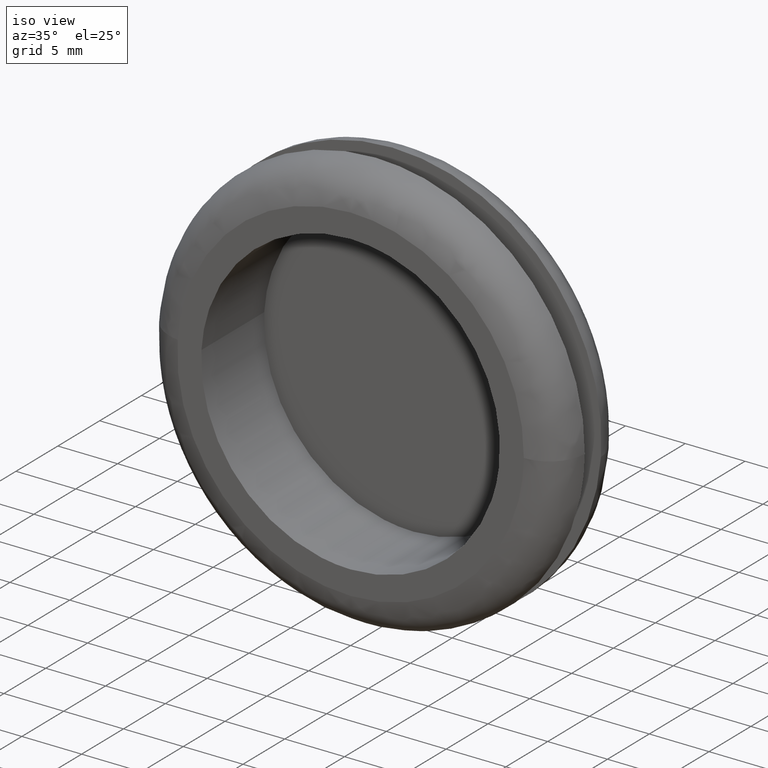
[diagram: clean part render]
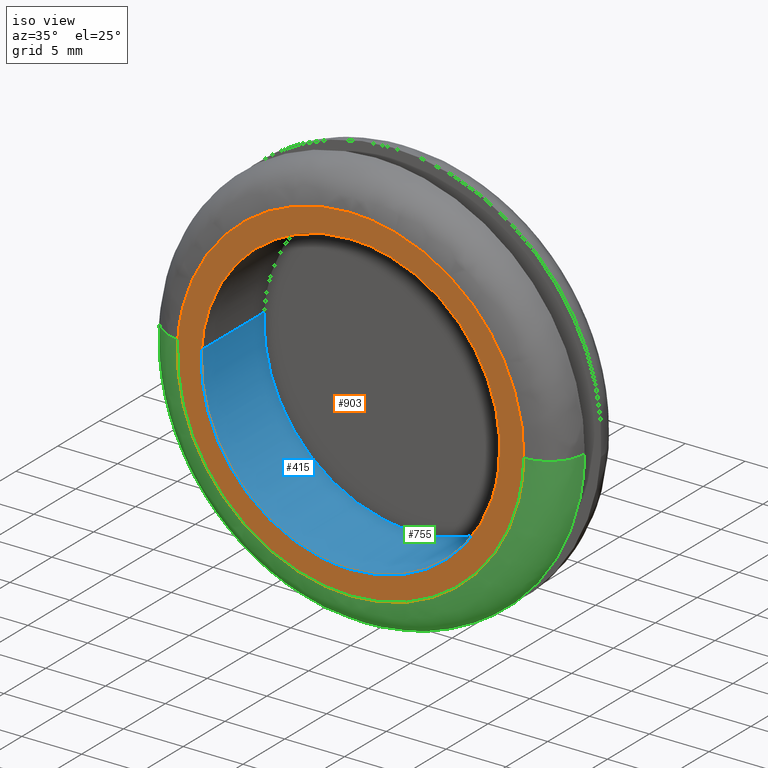
[diagram: same view with three faces highlighted in distinct colors, each labeled with its STEP entity id]
A machine part, iso view with three faces highlighted in distinct colors.
Their STEP definitions:

[orange] entity #903 — the highlighted face is a freeform B-spline surface patch.
#271=CARTESIAN_POINT('',(12.412619730572290,-2.383220E-015,-1.475422456172133));
#272=VERTEX_POINT('',#271);
#278=CARTESIAN_POINT('',(0.0,-2.296137E-015,12.500000000000000));
#279=VERTEX_POINT('',#278);
#280=CARTESIAN_POINT('',(12.412619730572295,-2.383220E-015,-1.475422456172133));
#281=CARTESIAN_POINT('',(12.500000000000002,-2.296137E-015,-0.740298728179114));
#282=CARTESIAN_POINT('',(12.500000000000000,-2.296137E-015,-3.061516E-016));
#283=CARTESIAN_POINT('',(12.499999999999998,-2.296137E-015,12.499999999999998));
#284=CARTESIAN_POINT('',(0.0,-2.296137E-015,12.500000000000000));
#292=(BOUNDED_CURVE()B_SPLINE_CURVE(2,(#280,#281,#282,#283,#284),.UNSPECIFIED.,.F.,.U.)B_SPLINE_CURVE_WITH_KNOTS((3,2,3),(0.229562548087910,0.250000000000000,0.500000000000000),.UNSPECIFIED.)CURVE()GEOMETRIC_REPRESENTATION_ITEM()RATIONAL_B_SPLINE_CURVE((0.956026900352632,0.976056035700492,1.0,0.707106781186547,1.0))REPRESENTATION_ITEM(''));
#293=EDGE_CURVE('',#272,#279,#292,.T.);
#295=CARTESIAN_POINT('',(-12.476685747280390,-2.410947E-015,0.763094203524391));
#296=VERTEX_POINT('',#295);
#297=CARTESIAN_POINT('',(0.0,-2.296137E-015,12.500000000000000));
#298=CARTESIAN_POINT('',(-11.758837677533522,-2.296137E-015,12.499999999999998));
#299=CARTESIAN_POINT('',(-12.476685747280390,-2.410947E-015,0.763094203524391));
#307=(BOUNDED_CURVE()B_SPLINE_CURVE(2,(#297,#298,#299),.UNSPECIFIED.,.F.,.U.)B_SPLINE_CURVE_WITH_KNOTS((3,3),(0.500000000000000,0.739333135673544),.UNSPECIFIED.)CURVE()GEOMETRIC_REPRESENTATION_ITEM()RATIONAL_B_SPLINE_CURVE((1.0,0.719603790095436,0.976072413370364))REPRESENTATION_ITEM(''));
#308=EDGE_CURVE('',#279,#296,#307,.T.);
#382=CARTESIAN_POINT('',(0.0,-2.296137E-015,-12.500000000000000));
#383=VERTEX_POINT('',#382);
#384=CARTESIAN_POINT('',(-12.476685747280390,-2.410947E-015,0.763094203524391));
#385=CARTESIAN_POINT('',(-12.499999999999998,-2.296137E-015,0.381903253320788));
#386=CARTESIAN_POINT('',(-12.500000000000000,-2.296137E-015,-3.061516E-016));
#387=CARTESIAN_POINT('',(-12.499999999999998,-2.296137E-015,-12.499999999999998));
#388=CARTESIAN_POINT('',(0.0,-2.296137E-015,-12.500000000000000));
#396=(BOUNDED_CURVE()B_SPLINE_CURVE(2,(#384,#385,#386,#387,#388),.UNSPECIFIED.,.F.,.U.)B_SPLINE_CURVE_WITH_KNOTS((3,2,3),(0.739333135673544,0.750000000000000,1.0),.UNSPECIFIED.)CURVE()GEOMETRIC_REPRESENTATION_ITEM()RATIONAL_B_SPLINE_CURVE((0.976072413370364,0.987502991091111,1.0,0.707106781186547,1.0))REPRESENTATION_ITEM(''));
#397=EDGE_CURVE('',#296,#383,#396,.T.);
#399=CARTESIAN_POINT('',(0.0,-2.296137E-015,-12.500000000000000));
#400=CARTESIAN_POINT('',(11.102186507688929,-2.296137E-015,-12.499999999999998));
#401=CARTESIAN_POINT('',(12.412619730572295,-2.383220E-015,-1.475422456172133));
#409=(BOUNDED_CURVE()B_SPLINE_CURVE(2,(#399,#400,#401),.UNSPECIFIED.,.F.,.U.)B_SPLINE_CURVE_WITH_KNOTS((3,3),(0.0,0.229562548087910),.UNSPECIFIED.)CURVE()GEOMETRIC_REPRESENTATION_ITEM()RATIONAL_B_SPLINE_CURVE((1.0,0.731050745486056,0.956026900352632))REPRESENTATION_ITEM(''));
#410=EDGE_CURVE('',#383,#272,#409,.T.);
#659=CARTESIAN_POINT('',(-14.464702138106420,-6.384905E-014,1.011132138611312));
#660=VERTEX_POINT('',#659);
#661=CARTESIAN_POINT('',(0.0,-6.394885E-014,-14.499999866719939));
#662=VERTEX_POINT('',#661);
#663=CARTESIAN_POINT('',(-14.464702138106420,-6.384905E-014,1.011132138611312));
#664=CARTESIAN_POINT('',(-14.499999866719945,-6.394885E-014,0.506182175565772));
#665=CARTESIAN_POINT('',(-14.499999866719939,-6.394885E-014,-3.061516E-016));
#666=CARTESIAN_POINT('',(-14.499999866719946,-6.394885E-014,-14.499999866719946));
#667=CARTESIAN_POINT('',(0.0,-6.394885E-014,-14.499999866719939));
#675=(BOUNDED_CURVE()B_SPLINE_CURVE(2,(#663,#664,#665,#666,#667),.UNSPECIFIED.,.F.,.U.)B_SPLINE_CURVE_WITH_KNOTS((3,2,3),(0.737833686534302,0.750000000000000,1.0),.UNSPECIFIED.)CURVE()GEOMETRIC_REPRESENTATION_ITEM()RATIONAL_B_SPLINE_CURVE((0.972879876385306,0.985746277151753,1.0,0.707106781186548,1.0))REPRESENTATION_ITEM(''));
#676=EDGE_CURVE('',#660,#662,#675,.T.);
#725=CARTESIAN_POINT('',(14.498855008070800,-6.388134E-014,-0.182207576678487));
#726=VERTEX_POINT('',#725);
#740=CARTESIAN_POINT('',(0.0,-6.394885E-014,-14.499999866719939));
#741=CARTESIAN_POINT('',(14.318922851961739,-6.394885E-014,-14.499999866719934));
#742=CARTESIAN_POINT('',(14.498855008070807,-6.388134E-014,-0.182207576678487));
#750=(BOUNDED_CURVE()B_SPLINE_CURVE(2,(#740,#741,#742),.UNSPECIFIED.,.F.,.U.)B_SPLINE_CURVE_WITH_KNOTS((3,3),(0.0,0.247784295920762),.UNSPECIFIED.)CURVE()GEOMETRIC_REPRESENTATION_ITEM()RATIONAL_B_SPLINE_CURVE((1.0,0.709702639985372,0.994854295641789))REPRESENTATION_ITEM(''));
#751=EDGE_CURVE('',#662,#726,#750,.T.);
#779=CARTESIAN_POINT('',(0.0,-6.394885E-014,14.499999866719939));
#780=VERTEX_POINT('',#779);
#781=CARTESIAN_POINT('',(0.0,-6.394885E-014,14.499999866719939));
#782=CARTESIAN_POINT('',(-13.521784161011732,-6.394885E-014,14.499999866719934));
#783=CARTESIAN_POINT('',(-14.464702138106416,-6.384905E-014,1.011132138611312));
#791=(BOUNDED_CURVE()B_SPLINE_CURVE(2,(#781,#782,#783),.UNSPECIFIED.,.F.,.U.)B_SPLINE_CURVE_WITH_KNOTS((3,3),(0.500000000000000,0.737833686534301),.UNSPECIFIED.)CURVE()GEOMETRIC_REPRESENTATION_ITEM()RATIONAL_B_SPLINE_CURVE((1.0,0.721360504034796,0.972879876385304))REPRESENTATION_ITEM(''));
#792=EDGE_CURVE('',#780,#660,#791,.T.);
#794=CARTESIAN_POINT('',(14.498855008070800,-6.388134E-014,-0.182207576678487));
#795=CARTESIAN_POINT('',(14.499999866719941,-6.394885E-014,-0.091107385084804));
#796=CARTESIAN_POINT('',(14.499999866719939,-6.394885E-014,-3.061516E-016));
#797=CARTESIAN_POINT('',(14.499999866719946,-6.394885E-014,14.499999866719946));
#798=CARTESIAN_POINT('',(0.0,-6.394885E-014,14.499999866719939));
#806=(BOUNDED_CURVE()B_SPLINE_CURVE(2,(#794,#795,#796,#797,#798),.UNSPECIFIED.,.F.,.U.)B_SPLINE_CURVE_WITH_KNOTS((3,2,3),(0.247784295920762,0.250000000000000,0.500000000000000),.UNSPECIFIED.)CURVE()GEOMETRIC_REPRESENTATION_ITEM()RATIONAL_B_SPLINE_CURVE((0.994854295641788,0.997404141201175,1.0,0.707106781186548,1.0))REPRESENTATION_ITEM(''));
#807=EDGE_CURVE('',#726,#780,#806,.T.);
#886=CARTESIAN_POINT('',(-15.946756566500710,-3.312249E-014,-15.948550069428880));
#887=CARTESIAN_POINT('',(-15.946756566500710,-3.312249E-014,15.948550587989290));
#888=CARTESIAN_POINT('',(15.947263767816120,-3.312249E-014,-15.948550069428880));
#889=CARTESIAN_POINT('',(15.947263767816120,-3.312249E-014,15.948550587989290));
#890=B_SPLINE_SURFACE_WITH_KNOTS('',1,1,((#886,#888),(#887,#889)),.UNSPECIFIED.,.F.,.F.,.U.,(2,2),(2,2),(0.0,31.897100657418179),(0.0,31.894020334316831),.UNSPECIFIED.);
#891=ORIENTED_EDGE('',*,*,#751,.T.);
#892=ORIENTED_EDGE('',*,*,#807,.T.);
#893=ORIENTED_EDGE('',*,*,#792,.T.);
#894=ORIENTED_EDGE('',*,*,#676,.T.);
#895=EDGE_LOOP('',(#891,#892,#893,#894));
#896=FACE_OUTER_BOUND('',#895,.T.);
#897=ORIENTED_EDGE('',*,*,#308,.F.);
#898=ORIENTED_EDGE('',*,*,#293,.F.);
#899=ORIENTED_EDGE('',*,*,#410,.F.);
#900=ORIENTED_EDGE('',*,*,#397,.F.);
#901=EDGE_LOOP('',(#897,#898,#899,#900));
#902=FACE_BOUND('',#901,.T.);
#903=ADVANCED_FACE('',(#896,#902),#890,.F.);

[blue] entity #415 — the highlighted face is a freeform B-spline surface patch.
#252=CARTESIAN_POINT('',(12.412619738504860,7.499999999999872,-1.475422389435752));
#253=VERTEX_POINT('',#252);
#271=CARTESIAN_POINT('',(12.412619730572290,-2.383220E-015,-1.475422456172133));
#272=VERTEX_POINT('',#271);
#273=CARTESIAN_POINT('',(12.412619738504860,7.499999999999872,-1.475422389435752));
#274=CARTESIAN_POINT('',(12.412619730572290,-2.383220E-015,-1.475422456172133));
#275=QUASI_UNIFORM_CURVE('',1,(#273,#274),.UNSPECIFIED.,.F.,.U.);
#276=EDGE_CURVE('',#253,#272,#275,.T.);
#295=CARTESIAN_POINT('',(-12.476685747280390,-2.410947E-015,0.763094203524391));
#296=VERTEX_POINT('',#295);
#310=CARTESIAN_POINT('',(-12.476685756633151,7.499999999999887,0.763094050603009));
#311=VERTEX_POINT('',#310);
#312=CARTESIAN_POINT('',(-12.476685756633151,7.499999999999887,0.763094050603009));
#313=CARTESIAN_POINT('',(-12.476685747280390,-2.410947E-015,0.763094203524391));
#314=QUASI_UNIFORM_CURVE('',1,(#312,#313),.UNSPECIFIED.,.F.,.U.);
#315=EDGE_CURVE('',#311,#296,#314,.T.);
#333=CARTESIAN_POINT('',(-12.476684980273340,7.687499999999898,0.763106744185712));
#334=CARTESIAN_POINT('',(-13.239791724459048,7.687499999999900,-11.713578236087622));
#335=CARTESIAN_POINT('',(-0.763106744185712,7.687499999999898,-12.476684980273340));
#336=CARTESIAN_POINT('',(11.019293635493762,7.687499999999899,-13.197327459156595));
#337=CARTESIAN_POINT('',(12.412619079545834,7.687499999999898,-1.475427933209482));
#338=CARTESIAN_POINT('',(-12.476684980273340,-0.192187500000000,0.763106744185712));
#339=CARTESIAN_POINT('',(-13.239791724459048,-0.192187500000000,-11.713578236087622));
#340=CARTESIAN_POINT('',(-0.763106744185712,-0.192187500000000,-12.476684980273340));
#341=CARTESIAN_POINT('',(11.019293635493762,-0.192187500000000,-13.197327459156595));
#342=CARTESIAN_POINT('',(12.412619079545834,-0.192187500000000,-1.475427933209482));
#350=(BOUNDED_SURFACE()B_SPLINE_SURFACE(2,1,((#333,#338),(#334,#339),(#335,#340),(#336,#341),(#337,#342)),.UNSPECIFIED.,.F.,.F.,.U.)B_SPLINE_SURFACE_WITH_KNOTS((3,2,3),(2,2),(0.0,20.710678118654752,40.592929112563311),(0.0,7.879687499999899),.UNSPECIFIED.)GEOMETRIC_REPRESENTATION_ITEM()RATIONAL_B_SPLINE_SURFACE(((1.0,1.0),(0.707106781186548,0.707106781186548),(1.0,1.0),(0.718822509939086,0.718822509939086),(0.977505800795127,0.977505800795127)))REPRESENTATION_ITEM('')SURFACE());
#351=CARTESIAN_POINT('',(0.0,7.499999999999900,-12.500000000000000));
#352=VERTEX_POINT('',#351);
#353=CARTESIAN_POINT('',(0.0,7.499999999999900,-12.500000000000000));
#354=CARTESIAN_POINT('',(11.102186567799974,7.499999999999901,-12.499999999999998));
#355=CARTESIAN_POINT('',(12.412619738504862,7.499999999999872,-1.475422389435752));
#363=(BOUNDED_CURVE()B_SPLINE_CURVE(2,(#353,#354,#355),.UNSPECIFIED.,.F.,.U.)B_SPLINE_CURVE_WITH_KNOTS((3,3),(0.0,0.229562548996556),.UNSPECIFIED.)CURVE()GEOMETRIC_REPRESENTATION_ITEM()RATIONAL_B_SPLINE_CURVE((1.0,0.731050744421512,0.956026902133615))REPRESENTATION_ITEM(''));
#364=EDGE_CURVE('',#352,#253,#363,.T.);
#365=ORIENTED_EDGE('',*,*,#364,.F.);
#366=CARTESIAN_POINT('',(-12.476685756633152,7.499999999999887,0.763094050603009));
#367=CARTESIAN_POINT('',(-12.500000000000000,7.499999999999900,0.381903176645719));
#368=CARTESIAN_POINT('',(-12.500000000000000,7.499999999999900,-3.061516E-016));
#369=CARTESIAN_POINT('',(-12.499999999999998,7.499999999999901,-12.499999999999998));
#370=CARTESIAN_POINT('',(0.0,7.499999999999900,-12.500000000000000));
#378=(BOUNDED_CURVE()B_SPLINE_CURVE(2,(#366,#367,#368,#369,#370),.UNSPECIFIED.,.F.,.U.)B_SPLINE_CURVE_WITH_KNOTS((3,2,3),(0.739333137788376,0.750000000000000,1.0),.UNSPECIFIED.)CURVE()GEOMETRIC_REPRESENTATION_ITEM()RATIONAL_B_SPLINE_CURVE((0.976072417902860,0.987502993568792,1.0,0.707106781186547,1.0))REPRESENTATION_ITEM(''));
#379=EDGE_CURVE('',#311,#352,#378,.T.);
#380=ORIENTED_EDGE('',*,*,#379,.F.);
#381=ORIENTED_EDGE('',*,*,#315,.T.);
#382=CARTESIAN_POINT('',(0.0,-2.296137E-015,-12.500000000000000));
#383=VERTEX_POINT('',#382);
#384=CARTESIAN_POINT('',(-12.476685747280390,-2.410947E-015,0.763094203524391));
#385=CARTESIAN_POINT('',(-12.499999999999998,-2.296137E-015,0.381903253320788));
#386=CARTESIAN_POINT('',(-12.500000000000000,-2.296137E-015,-3.061516E-016));
#387=CARTESIAN_POINT('',(-12.499999999999998,-2.296137E-015,-12.499999999999998));
#388=CARTESIAN_POINT('',(0.0,-2.296137E-015,-12.500000000000000));
#396=(BOUNDED_CURVE()B_SPLINE_CURVE(2,(#384,#385,#386,#387,#388),.UNSPECIFIED.,.F.,.U.)B_SPLINE_CURVE_WITH_KNOTS((3,2,3),(0.739333135673544,0.750000000000000,1.0),.UNSPECIFIED.)CURVE()GEOMETRIC_REPRESENTATION_ITEM()RATIONAL_B_SPLINE_CURVE((0.976072413370364,0.987502991091111,1.0,0.707106781186547,1.0))REPRESENTATION_ITEM(''));
#397=EDGE_CURVE('',#296,#383,#396,.T.);
#398=ORIENTED_EDGE('',*,*,#397,.T.);
#399=CARTESIAN_POINT('',(0.0,-2.296137E-015,-12.500000000000000));
#400=CARTESIAN_POINT('',(11.102186507688929,-2.296137E-015,-12.499999999999998));
#401=CARTESIAN_POINT('',(12.412619730572295,-2.383220E-015,-1.475422456172133));
#409=(BOUNDED_CURVE()B_SPLINE_CURVE(2,(#399,#400,#401),.UNSPECIFIED.,.F.,.U.)B_SPLINE_CURVE_WITH_KNOTS((3,3),(0.0,0.229562548087910),.UNSPECIFIED.)CURVE()GEOMETRIC_REPRESENTATION_ITEM()RATIONAL_B_SPLINE_CURVE((1.0,0.731050745486056,0.956026900352632))REPRESENTATION_ITEM(''));
#410=EDGE_CURVE('',#383,#272,#409,.T.);
#411=ORIENTED_EDGE('',*,*,#410,.T.);
#412=ORIENTED_EDGE('',*,*,#276,.F.);
#413=EDGE_LOOP('',(#365,#380,#381,#398,#411,#412));
#414=FACE_OUTER_BOUND('',#413,.T.);
#415=ADVANCED_FACE('',(#414),#350,.F.);

[green] entity #755 — the highlighted face is a freeform B-spline surface patch.
#630=CARTESIAN_POINT('',(-17.450155134519811,3.208611455595631,1.219824543408222));
#631=CARTESIAN_POINT('',(-17.485065955191811,3.208611455595631,0.720409082478247));
#632=CARTESIAN_POINT('',(-17.491356944086842,3.208611455595630,0.219814444597841));
#633=CARTESIAN_POINT('',(-17.711171388684683,3.208611455595631,-17.271542499489001));
#634=CARTESIAN_POINT('',(-0.219814444597842,3.208611455595630,-17.491356944086842));
#635=CARTESIAN_POINT('',(17.271542499489001,3.208611455595631,-17.711171388684683));
#636=CARTESIAN_POINT('',(17.491356944086842,3.208611455595630,-0.219814444597843));
#637=CARTESIAN_POINT('',(-17.689444565399761,-0.232611996810258,1.236551679557753));
#638=CARTESIAN_POINT('',(-17.724834109059938,-0.232611996810258,0.730287864530216));
#639=CARTESIAN_POINT('',(-17.731211364646633,-0.232611996810258,0.222828702805950));
#640=CARTESIAN_POINT('',(-17.954040067452588,-0.232611996810258,-17.508382661840681));
#641=CARTESIAN_POINT('',(-0.222828702805951,-0.232611996810258,-17.731211364646633));
#642=CARTESIAN_POINT('',(17.508382661840681,-0.232611996810258,-17.954040067452588));
#643=CARTESIAN_POINT('',(17.731211364646633,-0.232611996810258,-0.222828702805952));
#644=CARTESIAN_POINT('',(-14.256598199972428,0.007261937678378,0.996584171073296));
#645=CARTESIAN_POINT('',(-14.285119983264057,0.007261937678378,0.588566849367772));
#646=CARTESIAN_POINT('',(-14.290259656823723,0.007261937678378,0.179586152158741));
#647=CARTESIAN_POINT('',(-14.469845808982466,0.007261937678378,-14.110673504664984));
#648=CARTESIAN_POINT('',(-0.179586152158742,0.007261937678378,-14.290259656823723));
#649=CARTESIAN_POINT('',(14.110673504664984,0.007261937678378,-14.469845808982466));
#650=CARTESIAN_POINT('',(14.290259656823723,0.007261937678378,-0.179586152158743));
#658=(BOUNDED_SURFACE()B_SPLINE_SURFACE(2,2,((#630,#637,#644),(#631,#638,#645),(#632,#639,#646),(#633,#640,#647),(#634,#641,#648),(#635,#642,#649),(#636,#643,#650)),.UNSPECIFIED.,.F.,.F.,.U.)B_SPLINE_SURFACE_WITH_KNOTS((3,2,2,3),(3,3),(0.0,1.159315592450299,30.142233043971750,59.125150495493209),(0.0,5.467122547965218),.UNSPECIFIED.)GEOMETRIC_REPRESENTATION_ITEM()RATIONAL_B_SPLINE_SURFACE(((0.895729735285258,0.587800190257192,0.895729803418566),(0.905606492914159,0.594281564922668,0.905606561798738),(0.916342098142244,0.601326536800916,0.916342167843423),(0.647951711483090,0.425202071879350,0.647951760769266),(0.916342098142244,0.601326536800916,0.916342167843423),(0.647951711483090,0.425202071879350,0.647951760769266),(0.916342098142244,0.601326536800916,0.916342167843423)))REPRESENTATION_ITEM('')SURFACE());
#659=CARTESIAN_POINT('',(-14.464702138106420,-6.384905E-014,1.011132138611312));
#660=VERTEX_POINT('',#659);
#661=CARTESIAN_POINT('',(0.0,-6.394885E-014,-14.499999866719939));
#662=VERTEX_POINT('',#661);
#663=CARTESIAN_POINT('',(-14.464702138106420,-6.384905E-014,1.011132138611312));
#664=CARTESIAN_POINT('',(-14.499999866719945,-6.394885E-014,0.506182175565772));
#665=CARTESIAN_POINT('',(-14.499999866719939,-6.394885E-014,-3.061516E-016));
#666=CARTESIAN_POINT('',(-14.499999866719946,-6.394885E-014,-14.499999866719946));
#667=CARTESIAN_POINT('',(0.0,-6.394885E-014,-14.499999866719939));
#675=(BOUNDED_CURVE()B_SPLINE_CURVE(2,(#663,#664,#665,#666,#667),.UNSPECIFIED.,.F.,.U.)B_SPLINE_CURVE_WITH_KNOTS((3,2,3),(0.737833686534302,0.750000000000000,1.0),.UNSPECIFIED.)CURVE()GEOMETRIC_REPRESENTATION_ITEM()RATIONAL_B_SPLINE_CURVE((0.972879876385306,0.985746277151753,1.0,0.707106781186548,1.0))REPRESENTATION_ITEM(''));
#676=EDGE_CURVE('',#660,#662,#675,.T.);
#677=ORIENTED_EDGE('',*,*,#676,.F.);
#678=CARTESIAN_POINT('',(-17.457399292207040,2.999999999907546,1.220331902577759));
#679=VERTEX_POINT('',#678);
#680=CARTESIAN_POINT('',(-17.457399292207040,2.999999999907547,1.220331902577759));
#681=CARTESIAN_POINT('',(-17.457399159067599,7.582020E-010,1.220331893263300));
#682=CARTESIAN_POINT('',(-14.464702138106416,-6.384905E-014,1.011132138611312));
#690=(BOUNDED_CURVE()B_SPLINE_CURVE(2,(#680,#681,#682),.UNSPECIFIED.,.F.,.U.)B_SPLINE_CURVE_WITH_KNOTS((3,3),(-1.734750745430869,-0.265249208604235),.UNSPECIFIED.)CURVE()GEOMETRIC_REPRESENTATION_ITEM()RATIONAL_B_SPLINE_CURVE((0.869031695861048,0.614498224585748,0.869031711784277))REPRESENTATION_ITEM(''));
#691=EDGE_CURVE('',#679,#660,#690,.T.);
#692=ORIENTED_EDGE('',*,*,#691,.F.);
#693=CARTESIAN_POINT('',(0.0,2.999999999999955,-17.500000000000000));
#694=VERTEX_POINT('',#693);
#695=CARTESIAN_POINT('',(-17.457399292207032,2.999999999907546,1.220331902577760));
#696=CARTESIAN_POINT('',(-17.500000000000004,2.999999999999955,0.610909527815002));
#697=CARTESIAN_POINT('',(-17.500000000000000,2.999999999999955,-3.061516E-016));
#698=CARTESIAN_POINT('',(-17.499999999999996,2.999999999999955,-17.499999999999996));
#699=CARTESIAN_POINT('',(0.0,2.999999999999955,-17.500000000000000));
#707=(BOUNDED_CURVE()B_SPLINE_CURVE(2,(#695,#696,#697,#698,#699),.UNSPECIFIED.,.F.,.U.)B_SPLINE_CURVE_WITH_KNOTS((3,2,3),(0.737833686534986,0.750000000000000,1.0),.UNSPECIFIED.)CURVE()GEOMETRIC_REPRESENTATION_ITEM()RATIONAL_B_SPLINE_CURVE((0.972879876386753,0.985746277152555,1.0,0.707106781186548,1.0))REPRESENTATION_ITEM(''));
#708=EDGE_CURVE('',#679,#694,#707,.T.);
#709=ORIENTED_EDGE('',*,*,#708,.T.);
#710=CARTESIAN_POINT('',(17.498618273566660,2.999999999907550,-0.219905697968200));
#711=VERTEX_POINT('',#710);
#712=CARTESIAN_POINT('',(0.0,2.999999999999955,-17.500000000000000));
#713=CARTESIAN_POINT('',(17.281458773359173,2.999999999999954,-17.500000000000004));
#714=CARTESIAN_POINT('',(17.498618273566652,2.999999999907549,-0.219905697968200));
#722=(BOUNDED_CURVE()B_SPLINE_CURVE(2,(#712,#713,#714),.UNSPECIFIED.,.F.,.U.)B_SPLINE_CURVE_WITH_KNOTS((3,3),(0.0,0.247784295921537),.UNSPECIFIED.)CURVE()GEOMETRIC_REPRESENTATION_ITEM()RATIONAL_B_SPLINE_CURVE((1.0,0.709702639984464,0.994854295643571))REPRESENTATION_ITEM(''));
#723=EDGE_CURVE('',#694,#711,#722,.T.);
#724=ORIENTED_EDGE('',*,*,#723,.T.);
#725=CARTESIAN_POINT('',(14.498855008070800,-6.388134E-014,-0.182207576678487));
#726=VERTEX_POINT('',#725);
#727=CARTESIAN_POINT('',(17.498618273566652,2.999999999907550,-0.219905697968200));
#728=CARTESIAN_POINT('',(17.498618140112473,7.710094E-010,-0.219905696281547));
#729=CARTESIAN_POINT('',(14.498855008070798,-6.388134E-014,-0.182207576678487));
#737=(BOUNDED_CURVE()B_SPLINE_CURVE(2,(#727,#728,#729),.UNSPECIFIED.,.F.,.U.)B_SPLINE_CURVE_WITH_KNOTS((3,3),(-1.734750745430872,-0.265249208608671),.UNSPECIFIED.)CURVE()GEOMETRIC_REPRESENTATION_ITEM()RATIONAL_B_SPLINE_CURVE((0.889029707193714,0.628638954455992,0.889029723481793))REPRESENTATION_ITEM(''));
#738=EDGE_CURVE('',#711,#726,#737,.T.);
#739=ORIENTED_EDGE('',*,*,#738,.T.);
#740=CARTESIAN_POINT('',(0.0,-6.394885E-014,-14.499999866719939));
#741=CARTESIAN_POINT('',(14.318922851961739,-6.394885E-014,-14.499999866719934));
#742=CARTESIAN_POINT('',(14.498855008070807,-6.388134E-014,-0.182207576678487));
#750=(BOUNDED_CURVE()B_SPLINE_CURVE(2,(#740,#741,#742),.UNSPECIFIED.,.F.,.U.)B_SPLINE_CURVE_WITH_KNOTS((3,3),(0.0,0.247784295920762),.UNSPECIFIED.)CURVE()GEOMETRIC_REPRESENTATION_ITEM()RATIONAL_B_SPLINE_CURVE((1.0,0.709702639985372,0.994854295641789))REPRESENTATION_ITEM(''));
#751=EDGE_CURVE('',#662,#726,#750,.T.);
#752=ORIENTED_EDGE('',*,*,#751,.F.);
#753=EDGE_LOOP('',(#677,#692,#709,#724,#739,#752));
#754=FACE_OUTER_BOUND('',#753,.T.);
#755=ADVANCED_FACE('',(#754),#658,.T.);